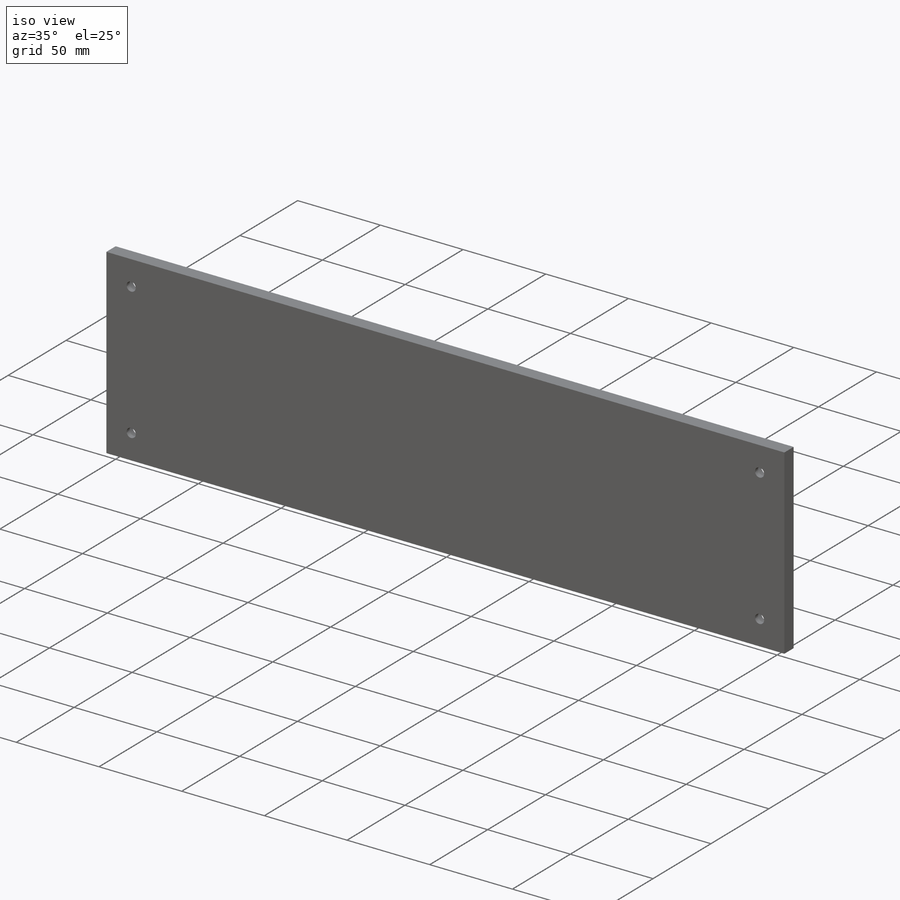
[diagram: iso view]
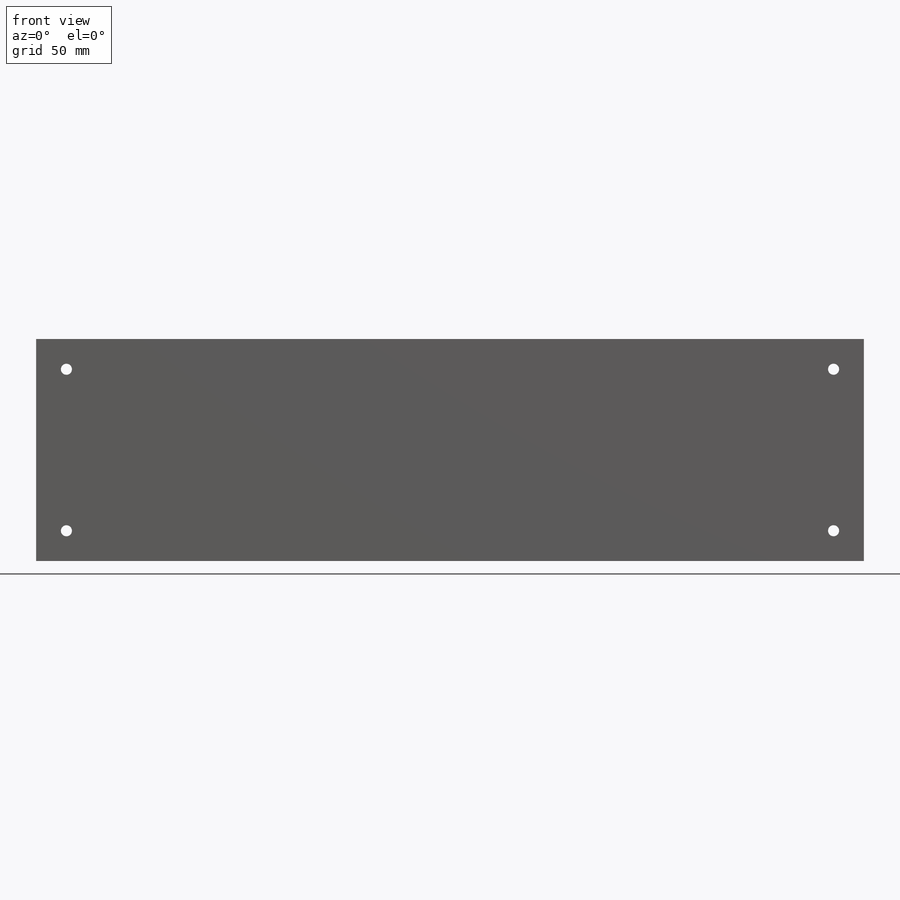
[diagram: front view]
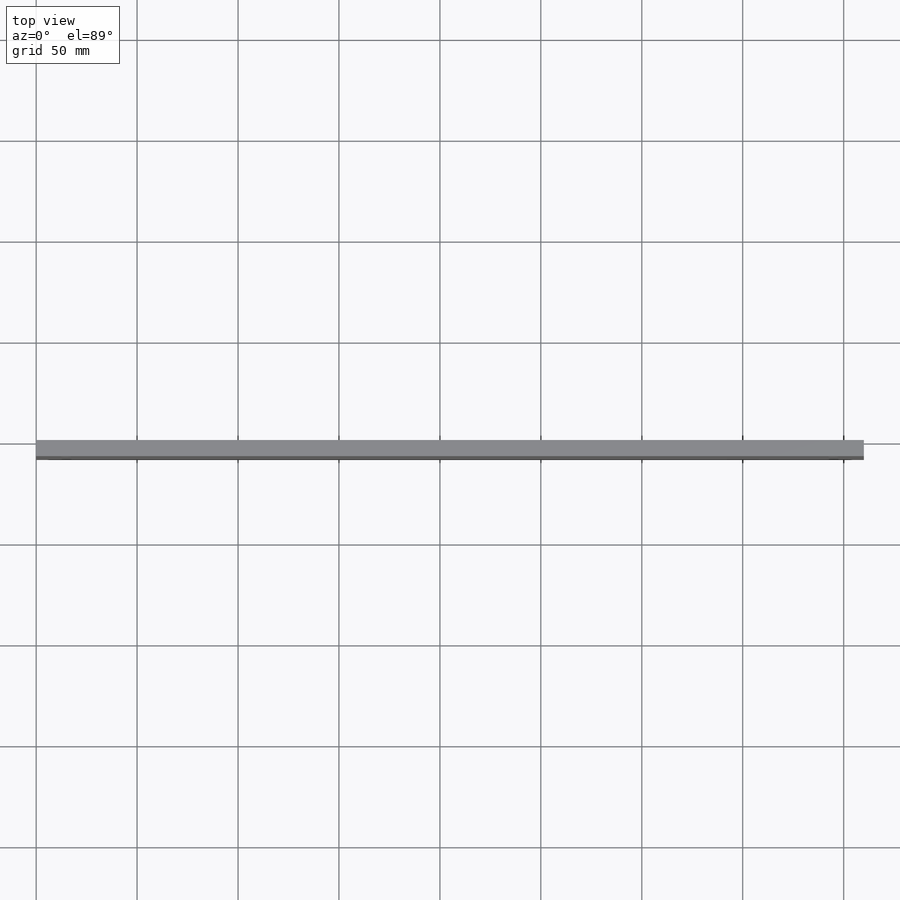
[diagram: top view]
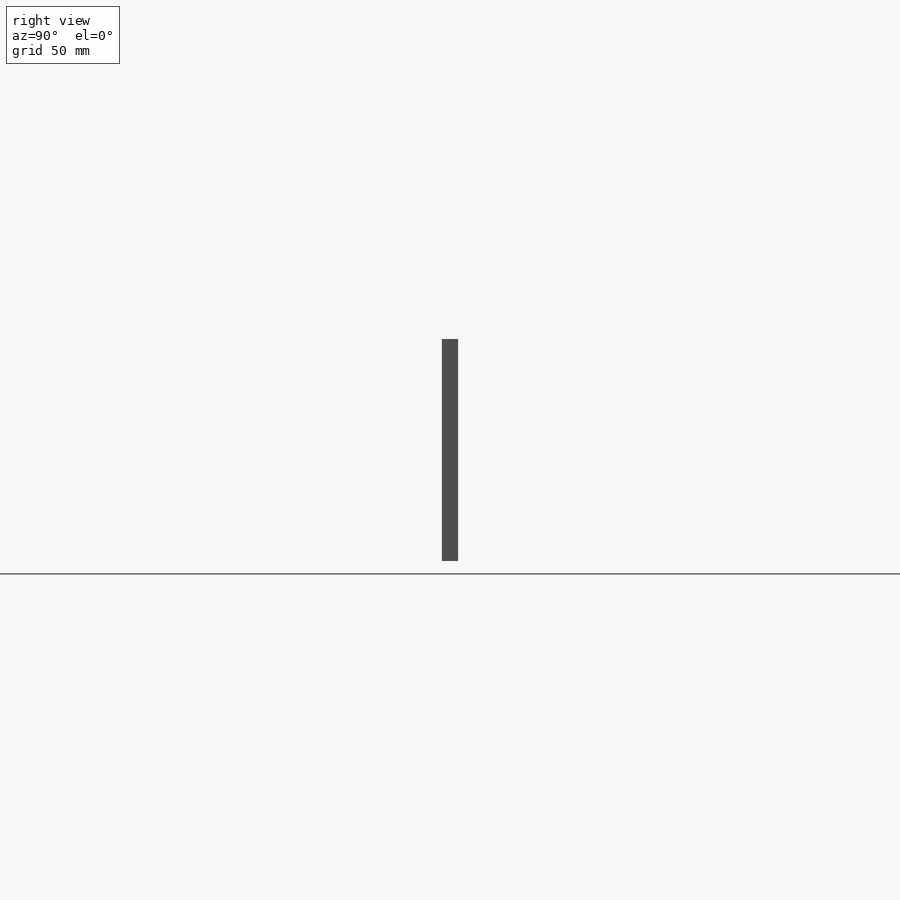
[diagram: right view]
SOLIDWORKS PART (.sldprt)
format: sldprt  version: not decoded by parser v0  size: 117,760 bytes
history: native  units: mm
features: sketch x4, material x1, extrude x1, hole x1 (+15 scaffold rows collapsed)
feature tree (22):
  scaffold x15  (default folders/planes/origin — collapsed)
  material  "Material <not specified>"
  sketch  "Sketch1"  dims[D1=410.0mm]
  extrude  "Extrude2"  Depth=8mm
  sketch  "Sketch3"  dims[D1=380.0mm]
  hole  "CBORE for M5 Hex Socket Head Cap Screw1"  Diameter=5.5mm Depth=8mm
  sketch  "3DSketch1"
  sketch  "Sketch4"  dims[hole-wizard template sketch: 42 standard entries collapsed; hole parameters kept: c12.Thru Hole Depth=8.0mm c12.C'Bore Dia.=10.0mm c12.C'Bore Depth=5.4mm]
decode coverage: 5 of 6 modeling features carry decoded parameters
note: ~ marks probable driven/reference dimensions
note: suppression state not decoded; provenance and decode notes live in map.json
